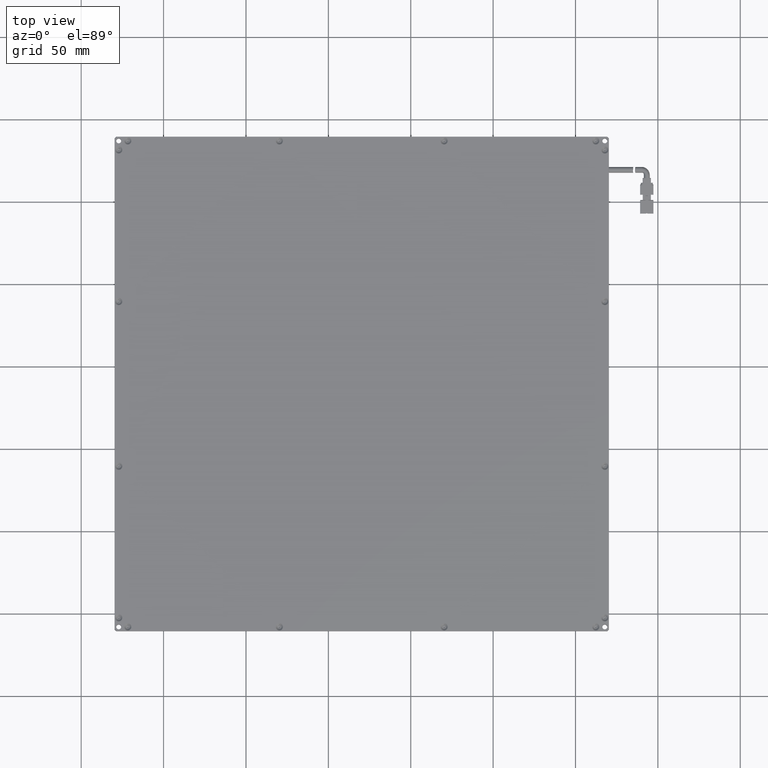
[diagram: clean part render]
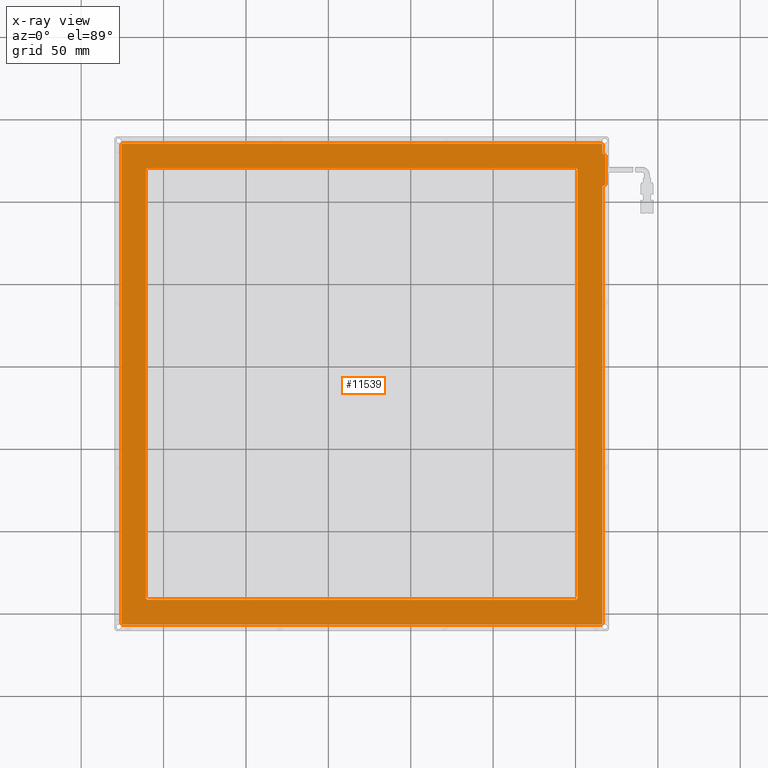
[diagram: x-ray — body ghosted, one internal face saturated and labeled with its STEP entity id]
A machine part, top view, then the same camera in x-ray: the body is ghosted and one INTERNAL B-rep face — a face not visible from any outside direction — is saturated and labeled: STEP entity #11539.
In plain terms, the highlighted planar face has unit normal (-0, 0, 1).
Its self-contained STEP definition (entity closure, byte-faithful):
#32 = VERTEX_POINT ( 'NONE', #12665 ) ;
#51 = ORIENTED_EDGE ( 'NONE', *, *, #15090, .F. ) ;
#417 = VERTEX_POINT ( 'NONE', #9960 ) ;
#577 = ORIENTED_EDGE ( 'NONE', *, *, #3938, .F. ) ;
#589 = LINE ( 'NONE', #16576, #11818 ) ;
#593 = DIRECTION ( 'NONE',  ( 1.000000000000000000, 0.0000000000000000000, 0.0000000000000000000 ) ) ;
#605 = VECTOR ( 'NONE', #4181, 1000.000000000000000 ) ;
#609 = ORIENTED_EDGE ( 'NONE', *, *, #16016, .T. ) ;
#1120 = CARTESIAN_POINT ( 'NONE',  ( -175.7273477157360200, -106.5461928934010400, -1.200000000000067900 ) ) ;
#1206 = EDGE_CURVE ( 'NONE', #15772, #32, #15928, .T. ) ;
#1264 = FACE_OUTER_BOUND ( 'NONE', #4774, .T. ) ;
#1287 = DIRECTION ( 'NONE',  ( 1.000000000000000000, 0.0000000000000000000, 0.0000000000000000000 ) ) ;
#1367 = AXIS2_PLACEMENT_3D ( 'NONE', #1120, #11372, #2585 ) ;
#1418 = DIRECTION ( 'NONE',  ( 1.000000000000000000, 0.0000000000000000000, 0.0000000000000000000 ) ) ;
#1558 = VERTEX_POINT ( 'NONE', #13181 ) ;
#1583 = EDGE_CURVE ( 'NONE', #11452, #15926, #6107, .T. ) ;
#1653 = VERTEX_POINT ( 'NONE', #15736 ) ;
#1767 = DIRECTION ( 'NONE',  ( -0.0000000000000000000, -0.0000000000000000000, -1.000000000000000000 ) ) ;
#1823 = DIRECTION ( 'NONE',  ( -0.0000000000000000000, -0.0000000000000000000, 1.000000000000000000 ) ) ;
#1971 = EDGE_CURVE ( 'NONE', #15926, #5535, #4958, .T. ) ;
#2109 = EDGE_CURVE ( 'NONE', #417, #8316, #4717, .T. ) ;
#2223 = EDGE_CURVE ( 'NONE', #417, #10966, #16194, .T. ) ;
#2233 = CIRCLE ( 'NONE', #6935, 1.500000000000001300 ) ;
#2280 = ORIENTED_EDGE ( 'NONE', *, *, #13988, .T. ) ;
#2301 = CARTESIAN_POINT ( 'NONE',  ( -174.7273477157360400, 184.4538071065989300, -1.200000000000067900 ) ) ;
#2532 = ORIENTED_EDGE ( 'NONE', *, *, #14442, .T. ) ;
#2585 = DIRECTION ( 'NONE',  ( 1.000000000000000000, 0.0000000000000000000, 0.0000000000000000000 ) ) ;
#2773 = VECTOR ( 'NONE', #18883, 1000.000000000000000 ) ;
#2802 = DIRECTION ( 'NONE',  ( -0.0000000000000000000, -0.0000000000000000000, 1.000000000000000000 ) ) ;
#2818 = ORIENTED_EDGE ( 'NONE', *, *, #13386, .T. ) ;
#3027 = ORIENTED_EDGE ( 'NONE', *, *, #7176, .T. ) ;
#3241 = CARTESIAN_POINT ( 'NONE',  ( -175.7273477157360400, 184.4538071065989300, -1.200000000000067900 ) ) ;
#3492 = CARTESIAN_POINT ( 'NONE',  ( -175.7273477157360200, -105.5461928934010400, -1.200000000000067900 ) ) ;
#3513 = VERTEX_POINT ( 'NONE', #14102 ) ;
#3770 = DIRECTION ( 'NONE',  ( -1.000000000000000000, 0.0000000000000000000, 0.0000000000000000000 ) ) ;
#3903 = EDGE_CURVE ( 'NONE', #1558, #18139, #17566, .T. ) ;
#3938 = EDGE_CURVE ( 'NONE', #13861, #8316, #589, .T. ) ;
#4018 = VECTOR ( 'NONE', #19017, 1000.000000000000000 ) ;
#4062 = VERTEX_POINT ( 'NONE', #8233 ) ;
#4181 = DIRECTION ( 'NONE',  ( -2.118746230200680700E-016, 1.000000000000000000, -0.0000000000000000000 ) ) ;
#4229 = LINE ( 'NONE', #10774, #12059 ) ;
#4255 = CARTESIAN_POINT ( 'NONE',  ( 101.2726522842640000, 170.4538071065989600, -1.200000000000068100 ) ) ;
#4356 = VERTEX_POINT ( 'NONE', #18331 ) ;
#4664 = VERTEX_POINT ( 'NONE', #3241 ) ;
#4717 = CIRCLE ( 'NONE', #13588, 1.500000000000001300 ) ;
#4764 = CARTESIAN_POINT ( 'NONE',  ( 115.2726522842639600, 184.4538071065989300, -1.200000000000067900 ) ) ;
#4774 = EDGE_LOOP ( 'NONE', ( #16540, #3027, #2532, #2818, #7587, #15794, #11120, #13363, #16739, #4974, #8191, #12966 ) ) ;
#4900 = CARTESIAN_POINT ( 'NONE',  ( -160.7273477157360400, 168.9538071065989000, -1.200000000000068100 ) ) ;
#4958 = LINE ( 'NONE', #11763, #9289 ) ;
#4974 = ORIENTED_EDGE ( 'NONE', *, *, #17420, .T. ) ;
#5019 = CIRCLE ( 'NONE', #13451, 1.000000000000000900 ) ;
#5152 = FACE_BOUND ( 'NONE', #6667, .T. ) ;
#5211 = CARTESIAN_POINT ( 'NONE',  ( 116.2726522842640100, 184.4538071065989300, -1.200000000000067900 ) ) ;
#5327 = DIRECTION ( 'NONE',  ( -0.0000000000000000000, -0.0000000000000000000, -1.000000000000000000 ) ) ;
#5452 = PLANE ( 'NONE',  #1367 ) ;
#5535 = VERTEX_POINT ( 'NONE', #9864 ) ;
#6039 = DIRECTION ( 'NONE',  ( -0.0000000000000000000, -1.000000000000000000, 0.0000000000000000000 ) ) ;
#6107 = CIRCLE ( 'NONE', #11440, 1.000000000000000900 ) ;
#6142 = ORIENTED_EDGE ( 'NONE', *, *, #2109, .T. ) ;
#6177 = VERTEX_POINT ( 'NONE', #15525 ) ;
#6527 = VECTOR ( 'NONE', #6039, 1000.000000000000000 ) ;
#6667 = EDGE_LOOP ( 'NONE', ( #11459, #18024, #51, #2280, #6763, #6142, #577, #609 ) ) ;
#6763 = ORIENTED_EDGE ( 'NONE', *, *, #2223, .F. ) ;
#6796 = CIRCLE ( 'NONE', #16706, 2.000000000000001800 ) ;
#6929 = EDGE_CURVE ( 'NONE', #3513, #11452, #7900, .T. ) ;
#6935 = AXIS2_PLACEMENT_3D ( 'NONE', #14117, #5327, #15569 ) ;
#7039 = EDGE_CURVE ( 'NONE', #13454, #14007, #9277, .T. ) ;
#7074 = EDGE_CURVE ( 'NONE', #14007, #1558, #4229, .T. ) ;
#7092 = CARTESIAN_POINT ( 'NONE',  ( 101.2726522842640000, 168.9538071065989000, -1.200000000000068100 ) ) ;
#7176 = EDGE_CURVE ( 'NONE', #5535, #4664, #7862, .T. ) ;
#7532 = CARTESIAN_POINT ( 'NONE',  ( 116.2726522842640100, -105.5461928934009800, -1.200000000000067900 ) ) ;
#7587 = ORIENTED_EDGE ( 'NONE', *, *, #18326, .T. ) ;
#7592 = CARTESIAN_POINT ( 'NONE',  ( 116.2726522842640100, 161.4538071065989000, -1.200000000000069000 ) ) ;
#7721 = DIRECTION ( 'NONE',  ( 1.000000000000000000, 0.0000000000000000000, -0.0000000000000000000 ) ) ;
#7862 = CIRCLE ( 'NONE', #8795, 1.000000000000000900 ) ;
#7900 = LINE ( 'NONE', #14789, #4018 ) ;
#8191 = ORIENTED_EDGE ( 'NONE', *, *, #6929, .T. ) ;
#8233 = CARTESIAN_POINT ( 'NONE',  ( -174.7273477157360200, -106.5461928934010400, -1.200000000000067900 ) ) ;
#8316 = VERTEX_POINT ( 'NONE', #8649 ) ;
#8649 = CARTESIAN_POINT ( 'NONE',  ( 99.77265228426398400, -91.54619289340104200, -1.200000000000068100 ) ) ;
#8655 = CARTESIAN_POINT ( 'NONE',  ( -175.7273477157360200, -106.5461928934010400, -1.200000000000067900 ) ) ;
#8726 = DIRECTION ( 'NONE',  ( 0.0000000000000000000, 1.000000000000000000, -0.0000000000000000000 ) ) ;
#8784 = AXIS2_PLACEMENT_3D ( 'NONE', #18875, #10048, #1287 ) ;
#8795 = AXIS2_PLACEMENT_3D ( 'NONE', #2301, #12569, #3770 ) ;
#9109 = DIRECTION ( 'NONE',  ( 1.000000000000000000, 0.0000000000000000000, 0.0000000000000000000 ) ) ;
#9277 = CIRCLE ( 'NONE', #16436, 1.000000000000000900 ) ;
#9289 = VECTOR ( 'NONE', #15994, 1000.000000000000000 ) ;
#9326 = DIRECTION ( 'NONE',  ( -0.0000000000000000000, -0.0000000000000000000, 1.000000000000000000 ) ) ;
#9540 = CARTESIAN_POINT ( 'NONE',  ( -160.7273477157360400, 170.4538071065989600, -1.200000000000068100 ) ) ;
#9615 = LINE ( 'NONE', #17604, #13109 ) ;
#9668 = CIRCLE ( 'NONE', #8784, 1.500000000000001300 ) ;
#9864 = CARTESIAN_POINT ( 'NONE',  ( -174.7273477157360400, 185.4538071065989300, -1.200000000000067900 ) ) ;
#9960 = CARTESIAN_POINT ( 'NONE',  ( 101.2726522842640000, -90.04619289340104200, -1.200000000000068100 ) ) ;
#10048 = DIRECTION ( 'NONE',  ( -0.0000000000000000000, 0.0000000000000000000, -1.000000000000000000 ) ) ;
#10165 = DIRECTION ( 'NONE',  ( -0.0000000000000000000, -0.0000000000000000000, -1.000000000000000000 ) ) ;
#10237 = CARTESIAN_POINT ( 'NONE',  ( 99.77265228426398400, -90.04619289340104200, -1.200000000000068100 ) ) ;
#10529 = CARTESIAN_POINT ( 'NONE',  ( 99.77265228426394100, 168.9538071065989000, -1.200000000000068100 ) ) ;
#10583 = CARTESIAN_POINT ( 'NONE',  ( 115.2726522842640000, -105.5461928934009800, -1.200000000000067900 ) ) ;
#10774 = CARTESIAN_POINT ( 'NONE',  ( 116.2726522842640100, -106.5461928934010400, -1.200000000000067900 ) ) ;
#10920 = DIRECTION ( 'NONE',  ( 1.191794754487883100E-016, -1.000000000000000000, -0.0000000000000000000 ) ) ;
#10966 = VERTEX_POINT ( 'NONE', #7092 ) ;
#11110 = CARTESIAN_POINT ( 'NONE',  ( 118.2726522842640100, 161.4538071065989000, -1.200000000000068800 ) ) ;
#11120 = ORIENTED_EDGE ( 'NONE', *, *, #7074, .T. ) ;
#11372 = DIRECTION ( 'NONE',  ( -0.0000000000000000000, 0.0000000000000000000, 1.000000000000000000 ) ) ;
#11440 = AXIS2_PLACEMENT_3D ( 'NONE', #4764, #13561, #14239 ) ;
#11452 = VERTEX_POINT ( 'NONE', #5211 ) ;
#11459 = ORIENTED_EDGE ( 'NONE', *, *, #1206, .F. ) ;
#11539 = ADVANCED_FACE ( 'NONE', ( #5152, #1264 ), #5452, .T. ) ;
#11573 = CARTESIAN_POINT ( 'NONE',  ( -174.7273477157360200, -105.5461928934010400, -1.200000000000067900 ) ) ;
#11763 = CARTESIAN_POINT ( 'NONE',  ( -175.7273477157360200, 185.4538071065989300, -1.200000000000067900 ) ) ;
#11818 = VECTOR ( 'NONE', #7721, 1000.000000000000000 ) ;
#11929 = VERTEX_POINT ( 'NONE', #3492 ) ;
#12025 = DIRECTION ( 'NONE',  ( 1.000000000000000000, 0.0000000000000000000, 0.0000000000000000000 ) ) ;
#12028 = VECTOR ( 'NONE', #13981, 1000.000000000000000 ) ;
#12043 = VECTOR ( 'NONE', #10920, 1000.000000000000000 ) ;
#12059 = VECTOR ( 'NONE', #13679, 1000.000000000000000 ) ;
#12079 = DIRECTION ( 'NONE',  ( -1.000000000000000000, 0.0000000000000000000, 0.0000000000000000000 ) ) ;
#12569 = DIRECTION ( 'NONE',  ( -0.0000000000000000000, -0.0000000000000000000, 1.000000000000000000 ) ) ;
#12665 = CARTESIAN_POINT ( 'NONE',  ( -160.7273477157359900, -90.04619289340102700, -1.200000000000068100 ) ) ;
#12966 = ORIENTED_EDGE ( 'NONE', *, *, #1583, .T. ) ;
#13072 = DIRECTION ( 'NONE',  ( -1.000000000000000000, 0.0000000000000000000, 0.0000000000000000000 ) ) ;
#13109 = VECTOR ( 'NONE', #8726, 1000.000000000000000 ) ;
#13181 = CARTESIAN_POINT ( 'NONE',  ( 116.2726522842640100, 159.4538071065989000, -1.200000000000068800 ) ) ;
#13186 = CARTESIAN_POINT ( 'NONE',  ( -159.2273477157359900, -91.54619289340104200, -1.200000000000068100 ) ) ;
#13363 = ORIENTED_EDGE ( 'NONE', *, *, #3903, .T. ) ;
#13386 = EDGE_CURVE ( 'NONE', #11929, #4062, #5019, .T. ) ;
#13451 = AXIS2_PLACEMENT_3D ( 'NONE', #11573, #2802, #13072 ) ;
#13454 = VERTEX_POINT ( 'NONE', #14915 ) ;
#13561 = DIRECTION ( 'NONE',  ( -0.0000000000000000000, -0.0000000000000000000, 1.000000000000000000 ) ) ;
#13588 = AXIS2_PLACEMENT_3D ( 'NONE', #10237, #10165, #1418 ) ;
#13679 = DIRECTION ( 'NONE',  ( 0.0000000000000000000, 1.000000000000000000, -0.0000000000000000000 ) ) ;
#13861 = VERTEX_POINT ( 'NONE', #13186 ) ;
#13912 = AXIS2_PLACEMENT_3D ( 'NONE', #7592, #17936, #9109 ) ;
#13981 = DIRECTION ( 'NONE',  ( -1.000000000000000000, -0.0000000000000000000, -0.0000000000000000000 ) ) ;
#13988 = EDGE_CURVE ( 'NONE', #6177, #10966, #15048, .T. ) ;
#14007 = VERTEX_POINT ( 'NONE', #7532 ) ;
#14102 = CARTESIAN_POINT ( 'NONE',  ( 116.2726522842640100, 179.4538071065989600, -1.200000000000068600 ) ) ;
#14117 = CARTESIAN_POINT ( 'NONE',  ( -159.2273477157360400, 168.9538071065989000, -1.200000000000068100 ) ) ;
#14239 = DIRECTION ( 'NONE',  ( -1.000000000000000000, 0.0000000000000000000, 0.0000000000000000000 ) ) ;
#14442 = EDGE_CURVE ( 'NONE', #4664, #11929, #17838, .T. ) ;
#14789 = CARTESIAN_POINT ( 'NONE',  ( 116.2726522842640100, -106.5461928934010400, -1.200000000000067900 ) ) ;
#14915 = CARTESIAN_POINT ( 'NONE',  ( 115.2726522842640000, -106.5461928934010400, -1.200000000000067900 ) ) ;
#14919 = AXIS2_PLACEMENT_3D ( 'NONE', #10529, #1767, #12025 ) ;
#15048 = CIRCLE ( 'NONE', #14919, 1.500000000000001300 ) ;
#15090 = EDGE_CURVE ( 'NONE', #6177, #1653, #15909, .T. ) ;
#15496 = CARTESIAN_POINT ( 'NONE',  ( 115.2726522842639600, 185.4538071065989300, -1.200000000000067900 ) ) ;
#15525 = CARTESIAN_POINT ( 'NONE',  ( 99.77265228426394100, 170.4538071065989600, -1.200000000000068100 ) ) ;
#15569 = DIRECTION ( 'NONE',  ( 1.000000000000000000, 0.0000000000000000000, 0.0000000000000000000 ) ) ;
#15736 = CARTESIAN_POINT ( 'NONE',  ( -159.2273477157360400, 170.4538071065989600, -1.200000000000068100 ) ) ;
#15772 = VERTEX_POINT ( 'NONE', #4900 ) ;
#15794 = ORIENTED_EDGE ( 'NONE', *, *, #7039, .T. ) ;
#15909 = LINE ( 'NONE', #9540, #12028 ) ;
#15926 = VERTEX_POINT ( 'NONE', #15496 ) ;
#15928 = LINE ( 'NONE', #17264, #12043 ) ;
#15994 = DIRECTION ( 'NONE',  ( -1.000000000000000000, -0.0000000000000000000, -0.0000000000000000000 ) ) ;
#16016 = EDGE_CURVE ( 'NONE', #13861, #32, #9668, .T. ) ;
#16194 = LINE ( 'NONE', #4255, #605 ) ;
#16436 = AXIS2_PLACEMENT_3D ( 'NONE', #10583, #1823, #12079 ) ;
#16540 = ORIENTED_EDGE ( 'NONE', *, *, #1971, .T. ) ;
#16576 = CARTESIAN_POINT ( 'NONE',  ( -160.7273477157359900, -91.54619289340104200, -1.200000000000068100 ) ) ;
#16706 = AXIS2_PLACEMENT_3D ( 'NONE', #18166, #9326, #593 ) ;
#16739 = ORIENTED_EDGE ( 'NONE', *, *, #18424, .T. ) ;
#17264 = CARTESIAN_POINT ( 'NONE',  ( -160.7273477157360400, 170.4538071065989600, -1.200000000000068100 ) ) ;
#17420 = EDGE_CURVE ( 'NONE', #4356, #3513, #6796, .T. ) ;
#17566 = CIRCLE ( 'NONE', #13912, 2.000000000000001800 ) ;
#17604 = CARTESIAN_POINT ( 'NONE',  ( 118.2726522842640100, -106.5461928934010400, -1.200000000000067900 ) ) ;
#17838 = LINE ( 'NONE', #17892, #6527 ) ;
#17892 = CARTESIAN_POINT ( 'NONE',  ( -175.7273477157360400, -106.5461928934010400, -1.200000000000067900 ) ) ;
#17936 = DIRECTION ( 'NONE',  ( -0.0000000000000000000, -0.0000000000000000000, 1.000000000000000000 ) ) ;
#17946 = LINE ( 'NONE', #8655, #2773 ) ;
#18024 = ORIENTED_EDGE ( 'NONE', *, *, #18193, .T. ) ;
#18139 = VERTEX_POINT ( 'NONE', #11110 ) ;
#18166 = CARTESIAN_POINT ( 'NONE',  ( 116.2726522842640100, 177.4538071065989600, -1.200000000000069000 ) ) ;
#18193 = EDGE_CURVE ( 'NONE', #15772, #1653, #2233, .T. ) ;
#18326 = EDGE_CURVE ( 'NONE', #4062, #13454, #17946, .T. ) ;
#18331 = CARTESIAN_POINT ( 'NONE',  ( 118.2726522842640100, 177.4538071065989600, -1.200000000000068800 ) ) ;
#18424 = EDGE_CURVE ( 'NONE', #18139, #4356, #9615, .T. ) ;
#18875 = CARTESIAN_POINT ( 'NONE',  ( -159.2273477157359900, -90.04619289340102700, -1.200000000000068100 ) ) ;
#18883 = DIRECTION ( 'NONE',  ( 1.000000000000000000, 0.0000000000000000000, 0.0000000000000000000 ) ) ;
#19017 = DIRECTION ( 'NONE',  ( 0.0000000000000000000, 1.000000000000000000, -0.0000000000000000000 ) ) ;